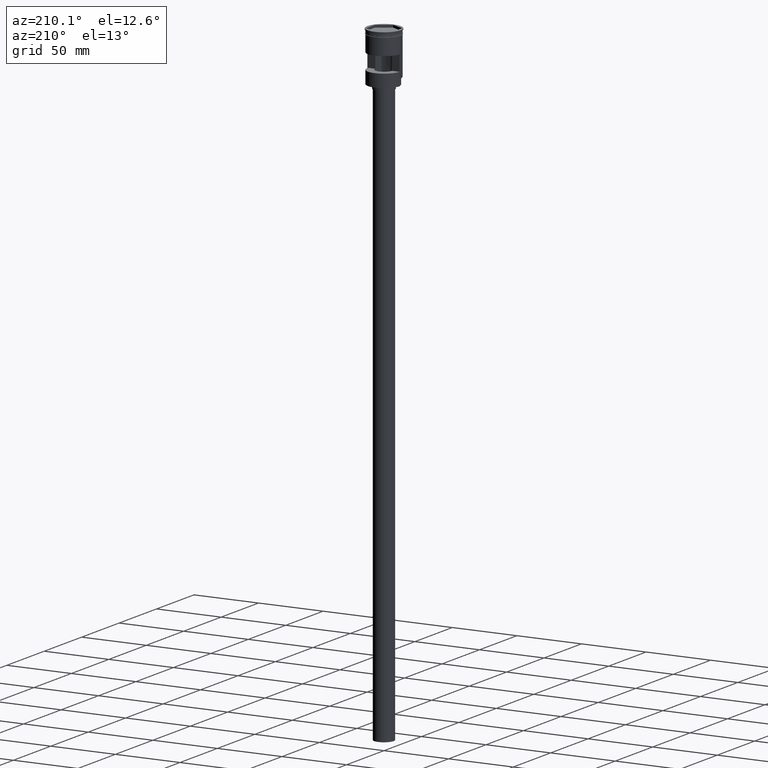
[diagram: clean part render]
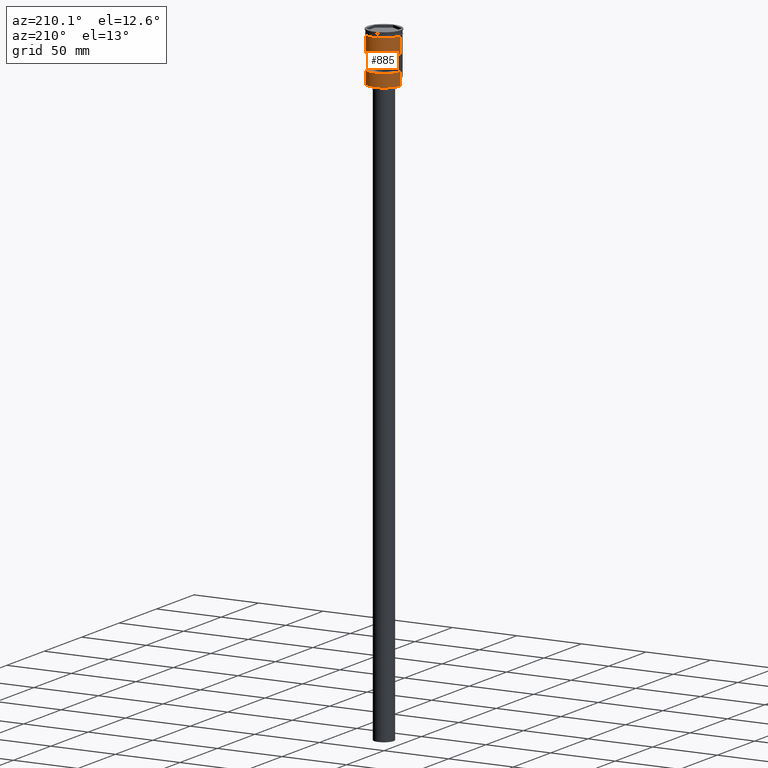
[diagram: same view with one face highlighted and labeled with its STEP entity id]
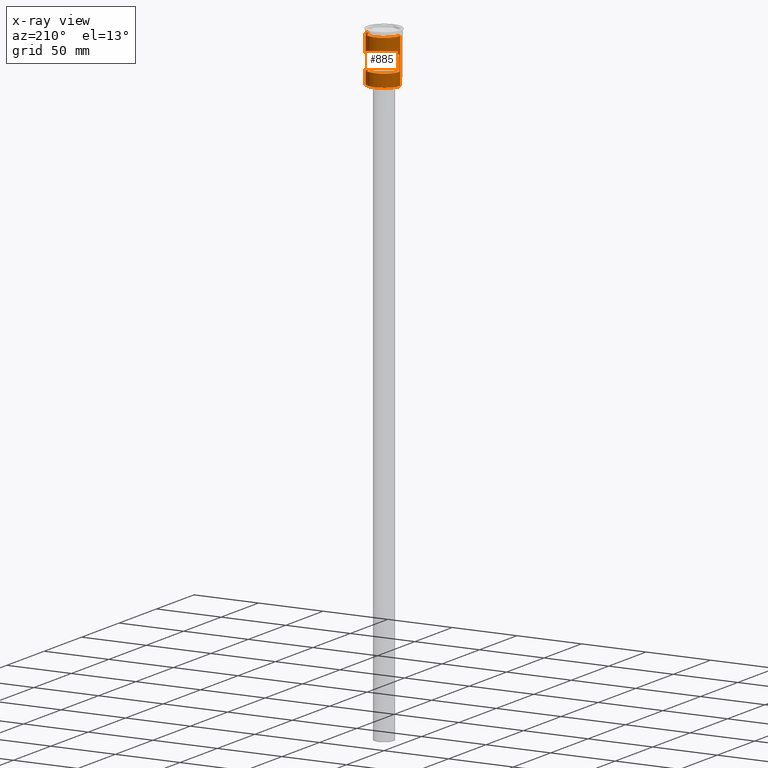
[diagram: x-ray of the same camera — body ghosted, the highlighted face saturated]
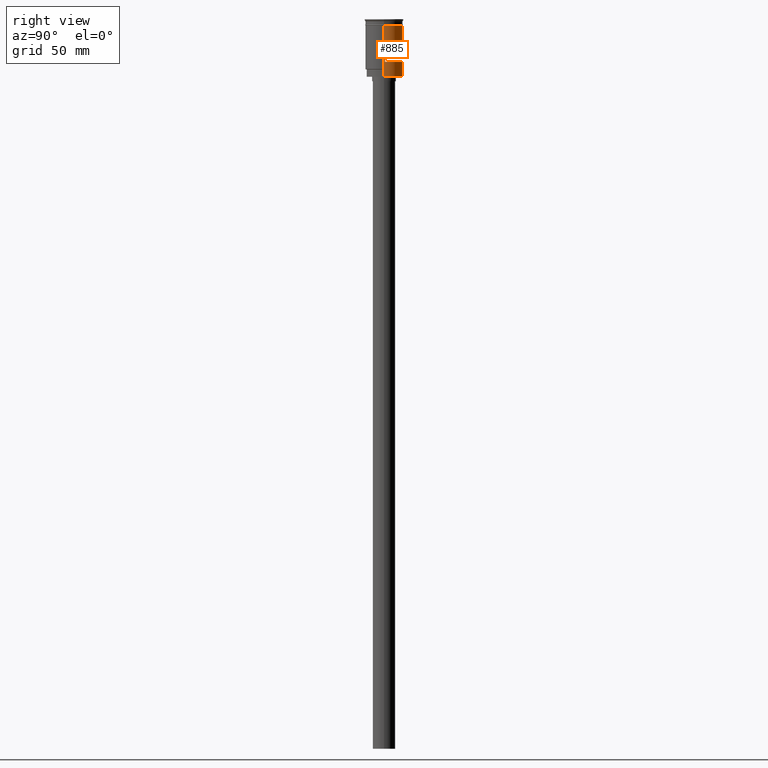
[diagram: same view with one face highlighted and labeled with its STEP entity id]
A machine part, auxiliary view. The second image highlights one B-rep face of the part: STEP entity #885.
The next image is the same camera in x-ray: the body ghosted, the highlighted face saturated — about 0% of this face is hidden behind the body in this view.
A second angle (right view) of the same face is appended — the face is thin or edge-on in the first view.
In plain terms, the highlighted cylindrical surface (edge-blend (fillet) strip) has radius 12.5 mm, axis along (-0, -0, 1).
Its self-contained STEP definition (entity closure, byte-faithful):
#4 = ORIENTED_EDGE ( 'NONE', *, *, #1061, .F. ) ;
#12 = VERTEX_POINT ( 'NONE', #1079 ) ;
#13 = ORIENTED_EDGE ( 'NONE', *, *, #603, .T. ) ;
#18 = ORIENTED_EDGE ( 'NONE', *, *, #1019, .T. ) ;
#30 = VECTOR ( 'NONE', #1269, 1000.000000000000000 ) ;
#47 = VECTOR ( 'NONE', #787, 1000.000000000000000 ) ;
#65 = CARTESIAN_POINT ( 'NONE',  ( -12.49999999999999289, 0.000000000000000000, -38.30000000000007532 ) ) ;
#85 = CIRCLE ( 'NONE', #161, 12.49999999999999645 ) ;
#92 = VERTEX_POINT ( 'NONE', #117 ) ;
#93 = CARTESIAN_POINT ( 'NONE',  ( 0.000000000000000000, 0.000000000000000000, -3.999999999999996447 ) ) ;
#99 = ORIENTED_EDGE ( 'NONE', *, *, #1562, .T. ) ;
#117 = CARTESIAN_POINT ( 'NONE',  ( -12.48559169603106689, 0.6000000000000003109, -16.50000000000000000 ) ) ;
#134 = VECTOR ( 'NONE', #808, 1000.000000000000000 ) ;
#146 = CARTESIAN_POINT ( 'NONE',  ( 12.49999999999999822, 0.000000000000000000, -3.999999999999996447 ) ) ;
#155 = LINE ( 'NONE', #538, #1277 ) ;
#161 = AXIS2_PLACEMENT_3D ( 'NONE', #664, #1285, #803 ) ;
#175 = EDGE_CURVE ( 'NONE', #12, #92, #1514, .T. ) ;
#187 = CIRCLE ( 'NONE', #394, 12.49999999999999822 ) ;
#192 = VERTEX_POINT ( 'NONE', #146 ) ;
#241 = DIRECTION ( 'NONE',  ( 1.000000000000000000, 0.000000000000000000, 0.000000000000000000 ) ) ;
#300 = ORIENTED_EDGE ( 'NONE', *, *, #1370, .F. ) ;
#306 = VERTEX_POINT ( 'NONE', #413 ) ;
#362 = EDGE_CURVE ( 'NONE', #306, #425, #1568, .T. ) ;
#381 = VERTEX_POINT ( 'NONE', #65 ) ;
#394 = AXIS2_PLACEMENT_3D ( 'NONE', #93, #1572, #241 ) ;
#402 = LINE ( 'NONE', #408, #30 ) ;
#406 = ORIENTED_EDGE ( 'NONE', *, *, #1119, .F. ) ;
#408 = CARTESIAN_POINT ( 'NONE',  ( 12.49999999999999645, 0.000000000000000000, 0.000000000000000000 ) ) ;
#409 = VERTEX_POINT ( 'NONE', #1329 ) ;
#413 = CARTESIAN_POINT ( 'NONE',  ( 12.48559169603106689, 0.6000000000000003109, -16.50000000000000000 ) ) ;
#425 = VERTEX_POINT ( 'NONE', #1546 ) ;
#451 = AXIS2_PLACEMENT_3D ( 'NONE', #962, #1456, #1230 ) ;
#468 = LINE ( 'NONE', #839, #655 ) ;
#496 = EDGE_LOOP ( 'NONE', ( #687, #406, #996, #300 ) ) ;
#497 = VECTOR ( 'NONE', #890, 1000.000000000000000 ) ;
#538 = CARTESIAN_POINT ( 'NONE',  ( -12.49999999999999289, 0.000000000000000000, -38.50000000000000000 ) ) ;
#552 = CIRCLE ( 'NONE', #451, 12.49999999999999645 ) ;
#603 = EDGE_CURVE ( 'NONE', #409, #381, #1174, .T. ) ;
#624 = FACE_OUTER_BOUND ( 'NONE', #755, .T. ) ;
#636 = DIRECTION ( 'NONE',  ( 0.000000000000000000, 0.000000000000000000, 1.000000000000000000 ) ) ;
#655 = VECTOR ( 'NONE', #821, 1000.000000000000000 ) ;
#664 = CARTESIAN_POINT ( 'NONE',  ( 0.000000000000000000, 0.000000000000000000, -16.50000000000000000 ) ) ;
#687 = ORIENTED_EDGE ( 'NONE', *, *, #362, .F. ) ;
#709 = VERTEX_POINT ( 'NONE', #919 ) ;
#755 = EDGE_LOOP ( 'NONE', ( #18, #99, #1017, #4, #909, #13 ) ) ;
#756 = CARTESIAN_POINT ( 'NONE',  ( 0.000000000000000000, 0.000000000000000000, -38.30000000000007532 ) ) ;
#787 = DIRECTION ( 'NONE',  ( -0.000000000000000000, -0.000000000000000000, 1.000000000000000000 ) ) ;
#803 = DIRECTION ( 'NONE',  ( 1.000000000000000000, 0.000000000000000000, 0.000000000000000000 ) ) ;
#808 = DIRECTION ( 'NONE',  ( 0.000000000000000000, 0.000000000000000000, -1.000000000000000000 ) ) ;
#821 = DIRECTION ( 'NONE',  ( -0.000000000000000000, -0.000000000000000000, 1.000000000000000000 ) ) ;
#836 = FACE_BOUND ( 'NONE', #496, .T. ) ;
#839 = CARTESIAN_POINT ( 'NONE',  ( -12.49999999999999645, 1.530808498934191127E-15, 0.000000000000000000 ) ) ;
#852 = AXIS2_PLACEMENT_3D ( 'NONE', #756, #636, #1005 ) ;
#885 = ADVANCED_FACE ( 'NONE', ( #836, #624 ), #1339, .T. ) ;
#890 = DIRECTION ( 'NONE',  ( -0.000000000000000000, -0.000000000000000000, 1.000000000000000000 ) ) ;
#897 = CARTESIAN_POINT ( 'NONE',  ( 12.49999999999999289, 1.530808498934190732E-15, -38.50000000000000000 ) ) ;
#909 = ORIENTED_EDGE ( 'NONE', *, *, #1091, .F. ) ;
#919 = CARTESIAN_POINT ( 'NONE',  ( -12.49999999999999289, 0.000000000000000000, -33.30000000000005400 ) ) ;
#935 = EDGE_CURVE ( 'NONE', #192, #1520, #187, .T. ) ;
#962 = CARTESIAN_POINT ( 'NONE',  ( 0.000000000000000000, 0.000000000000000000, -28.49999999999999645 ) ) ;
#996 = ORIENTED_EDGE ( 'NONE', *, *, #175, .F. ) ;
#1005 = DIRECTION ( 'NONE',  ( -1.000000000000000000, 0.000000000000000000, 0.000000000000000000 ) ) ;
#1008 = LINE ( 'NONE', #897, #497 ) ;
#1017 = ORIENTED_EDGE ( 'NONE', *, *, #935, .F. ) ;
#1019 = EDGE_CURVE ( 'NONE', #381, #709, #155, .T. ) ;
#1061 = EDGE_CURVE ( 'NONE', #1093, #192, #402, .T. ) ;
#1079 = CARTESIAN_POINT ( 'NONE',  ( -12.48559169603106689, 0.6000000000000003109, -28.49999999999999645 ) ) ;
#1091 = EDGE_CURVE ( 'NONE', #409, #1093, #1008, .T. ) ;
#1093 = VERTEX_POINT ( 'NONE', #1161 ) ;
#1119 = EDGE_CURVE ( 'NONE', #92, #306, #85, .T. ) ;
#1124 = CARTESIAN_POINT ( 'NONE',  ( 0.000000000000000000, 0.000000000000000000, 0.000000000000000000 ) ) ;
#1161 = CARTESIAN_POINT ( 'NONE',  ( 12.49999999999999645, 1.530808498934191127E-15, -33.30000000000005400 ) ) ;
#1174 = CIRCLE ( 'NONE', #852, 12.49999999999999645 ) ;
#1201 = AXIS2_PLACEMENT_3D ( 'NONE', #1124, #1476, #1461 ) ;
#1230 = DIRECTION ( 'NONE',  ( -1.000000000000000000, 0.000000000000000000, 0.000000000000000000 ) ) ;
#1261 = CARTESIAN_POINT ( 'NONE',  ( -12.48559169603106689, 0.6000000000000003109, 0.000000000000000000 ) ) ;
#1269 = DIRECTION ( 'NONE',  ( -0.000000000000000000, -0.000000000000000000, 1.000000000000000000 ) ) ;
#1277 = VECTOR ( 'NONE', #1486, 1000.000000000000000 ) ;
#1285 = DIRECTION ( 'NONE',  ( -0.000000000000000000, 0.000000000000000000, -1.000000000000000000 ) ) ;
#1329 = CARTESIAN_POINT ( 'NONE',  ( 12.49999999999999289, 1.530808498934190732E-15, -38.30000000000007532 ) ) ;
#1339 = CYLINDRICAL_SURFACE ( 'NONE', #1201, 12.49999999999999645 ) ;
#1370 = EDGE_CURVE ( 'NONE', #425, #12, #552, .T. ) ;
#1415 = CARTESIAN_POINT ( 'NONE',  ( -12.50000000000000000, 1.530808498934191521E-15, -3.999999999999996447 ) ) ;
#1438 = CARTESIAN_POINT ( 'NONE',  ( 12.48559169603106689, 0.6000000000000003109, 0.000000000000000000 ) ) ;
#1456 = DIRECTION ( 'NONE',  ( 0.000000000000000000, 0.000000000000000000, 1.000000000000000000 ) ) ;
#1461 = DIRECTION ( 'NONE',  ( 1.000000000000000000, 0.000000000000000000, 0.000000000000000000 ) ) ;
#1476 = DIRECTION ( 'NONE',  ( -0.000000000000000000, -0.000000000000000000, 1.000000000000000000 ) ) ;
#1486 = DIRECTION ( 'NONE',  ( -0.000000000000000000, -0.000000000000000000, 1.000000000000000000 ) ) ;
#1514 = LINE ( 'NONE', #1261, #47 ) ;
#1520 = VERTEX_POINT ( 'NONE', #1415 ) ;
#1546 = CARTESIAN_POINT ( 'NONE',  ( 12.48559169603106689, 0.6000000000000003109, -28.49999999999999645 ) ) ;
#1562 = EDGE_CURVE ( 'NONE', #709, #1520, #468, .T. ) ;
#1568 = LINE ( 'NONE', #1438, #134 ) ;
#1572 = DIRECTION ( 'NONE',  ( -0.000000000000000000, -0.000000000000000000, 1.000000000000000000 ) ) ;